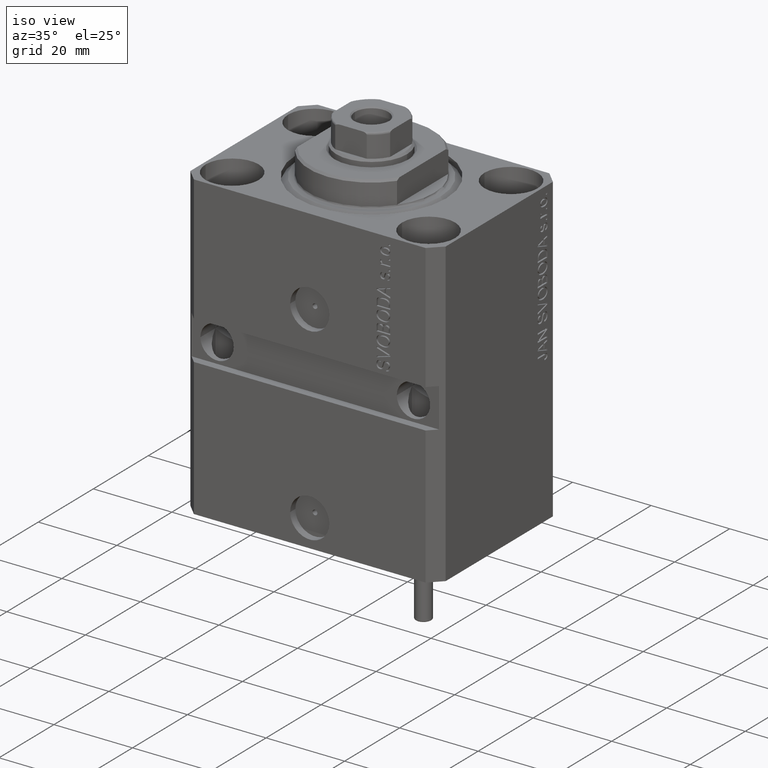
[diagram: clean part render]
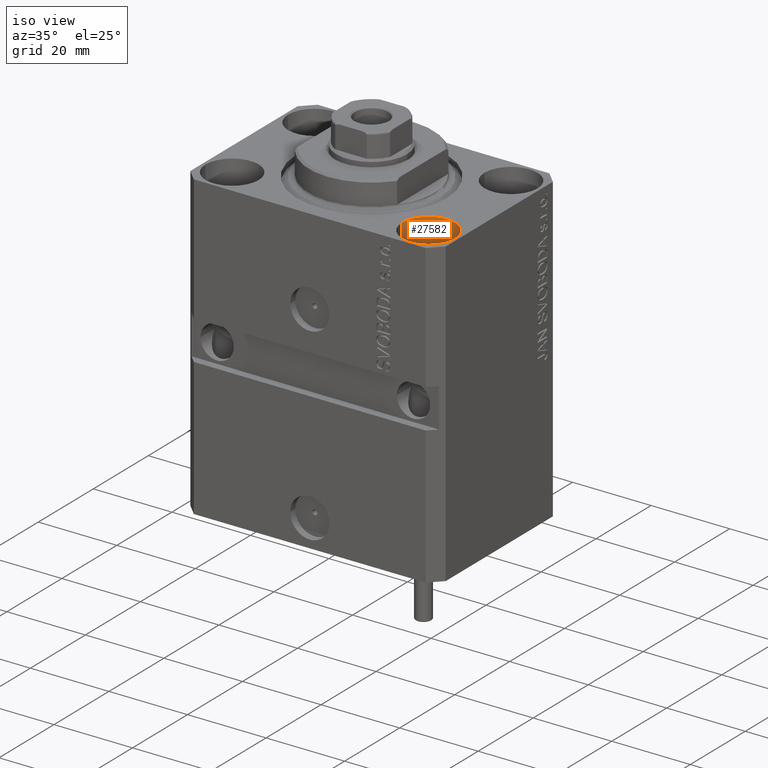
[diagram: same view with one face highlighted and labeled with its STEP entity id]
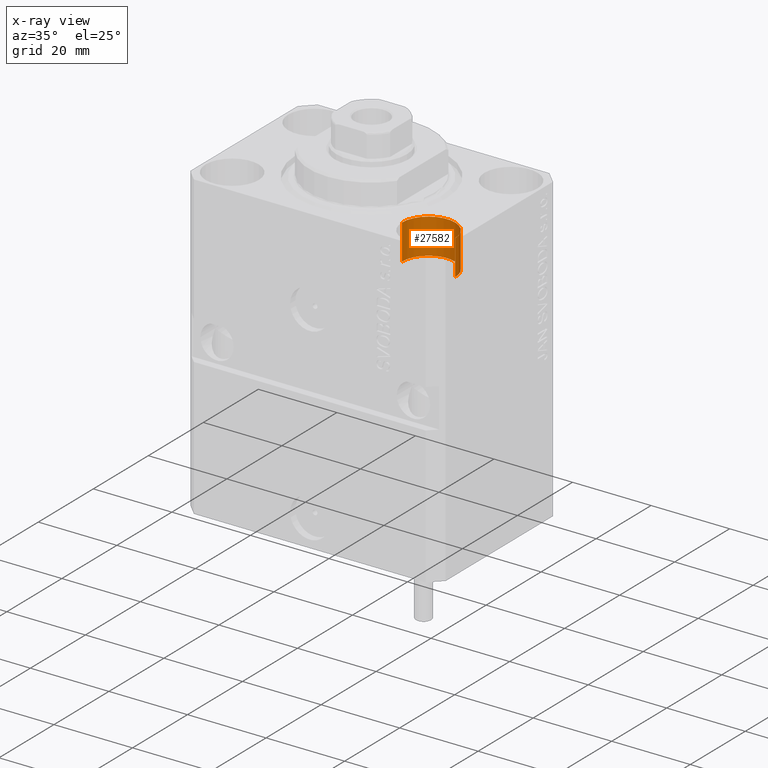
[diagram: x-ray of the same camera — body ghosted, the highlighted face saturated]
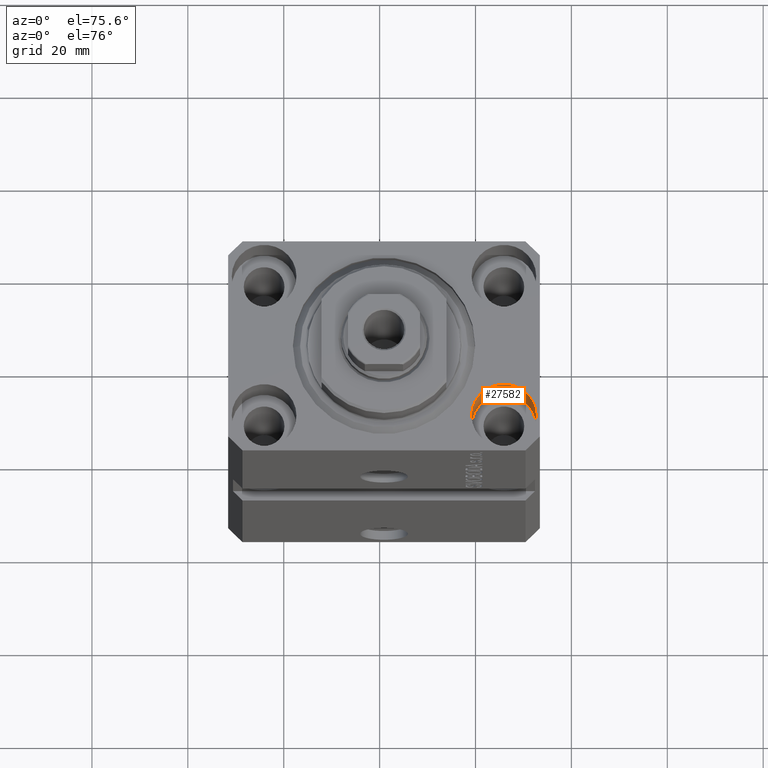
[diagram: same view with one face highlighted and labeled with its STEP entity id]
A machine part, iso view. The second image highlights one B-rep face of the part: STEP entity #27582.
The next image is the same camera in x-ray: the body ghosted, the highlighted face saturated — about 0% of this face is hidden behind the body in this view.
A second angle (auxiliary view) of the same face is appended — the face is thin or edge-on in the first view.
In plain terms, the highlighted cylindrical surface (edge-blend (fillet) strip) has radius 6.75 mm, axis along (0, 0, 1).
Its self-contained STEP definition (entity closure, byte-faithful):
#3739 = ORIENTED_EDGE ( 'NONE', *, *, #23119, .T. ) ;
#5137 = CARTESIAN_POINT ( 'NONE',  ( 25.00000000000000355, -15.00000000000000000, 0.000000000000000000 ) ) ;
#6008 = AXIS2_PLACEMENT_3D ( 'NONE', #5137, #34692, #45881 ) ;
#6012 = CARTESIAN_POINT ( 'NONE',  ( 18.25000000002253842, -15.00000000000000000, -9.000000000000000000 ) ) ;
#6070 = ORIENTED_EDGE ( 'NONE', *, *, #31295, .F. ) ;
#7476 = CYLINDRICAL_SURFACE ( 'NONE', #24908, 6.749999999977465137 ) ;
#9651 = DIRECTION ( 'NONE',  ( -0.000000000000000000, -0.000000000000000000, 1.000000000000000000 ) ) ;
#13250 = VERTEX_POINT ( 'NONE', #26316 ) ;
#13810 = VERTEX_POINT ( 'NONE', #30028 ) ;
#14310 = EDGE_CURVE ( 'NONE', #15833, #17668, #44765, .T. ) ;
#14453 = CARTESIAN_POINT ( 'NONE',  ( 25.00000000000000355, -15.00000000000000000, -9.000000000000000000 ) ) ;
#14566 = DIRECTION ( 'NONE',  ( -0.000000000000000000, -0.000000000000000000, 1.000000000000000000 ) ) ;
#15833 = VERTEX_POINT ( 'NONE', #37510 ) ;
#17108 = ORIENTED_EDGE ( 'NONE', *, *, #14310, .T. ) ;
#17668 = VERTEX_POINT ( 'NONE', #25344 ) ;
#17828 = ORIENTED_EDGE ( 'NONE', *, *, #44457, .F. ) ;
#18161 = DIRECTION ( 'NONE',  ( 1.000000000000000000, 0.000000000000000000, 0.000000000000000000 ) ) ;
#18217 = LINE ( 'NONE', #32984, #20139 ) ;
#18338 = DIRECTION ( 'NONE',  ( 1.000000000000000000, 0.000000000000000000, 0.000000000000000000 ) ) ;
#20139 = VECTOR ( 'NONE', #14566, 1000.000000000000000 ) ;
#23119 = EDGE_CURVE ( 'NONE', #13250, #15833, #18217, .T. ) ;
#23532 = CIRCLE ( 'NONE', #40539, 6.749999999977465137 ) ;
#24908 = AXIS2_PLACEMENT_3D ( 'NONE', #25420, #32690, #18161 ) ;
#25344 = CARTESIAN_POINT ( 'NONE',  ( 18.25000000002253842, -15.00000000000000000, 0.000000000000000000 ) ) ;
#25420 = CARTESIAN_POINT ( 'NONE',  ( 25.00000000000000355, -15.00000000000000000, -9.000000000000000000 ) ) ;
#26316 = CARTESIAN_POINT ( 'NONE',  ( 31.74999999997746869, -15.00000000000000000, -9.000000000000000000 ) ) ;
#27582 = ADVANCED_FACE ( 'NONE', ( #29294 ), #7476, .F. ) ;
#29294 = FACE_OUTER_BOUND ( 'NONE', #42774, .T. ) ;
#30028 = CARTESIAN_POINT ( 'NONE',  ( 18.25000000002253842, -15.00000000000000000, -9.000000000000000000 ) ) ;
#30328 = VECTOR ( 'NONE', #9651, 1000.000000000000000 ) ;
#31295 = EDGE_CURVE ( 'NONE', #13810, #17668, #46284, .T. ) ;
#32690 = DIRECTION ( 'NONE',  ( -0.000000000000000000, -0.000000000000000000, 1.000000000000000000 ) ) ;
#32984 = CARTESIAN_POINT ( 'NONE',  ( 31.74999999997746869, -15.00000000000000000, -9.000000000000000000 ) ) ;
#34692 = DIRECTION ( 'NONE',  ( 0.000000000000000000, 0.000000000000000000, 1.000000000000000000 ) ) ;
#36746 = DIRECTION ( 'NONE',  ( 0.000000000000000000, 0.000000000000000000, 1.000000000000000000 ) ) ;
#37510 = CARTESIAN_POINT ( 'NONE',  ( 31.74999999997746869, -15.00000000000000000, 0.000000000000000000 ) ) ;
#40539 = AXIS2_PLACEMENT_3D ( 'NONE', #14453, #36746, #18338 ) ;
#42774 = EDGE_LOOP ( 'NONE', ( #6070, #17828, #3739, #17108 ) ) ;
#44457 = EDGE_CURVE ( 'NONE', #13250, #13810, #23532, .T. ) ;
#44765 = CIRCLE ( 'NONE', #6008, 6.749999999977465137 ) ;
#45881 = DIRECTION ( 'NONE',  ( 1.000000000000000000, 0.000000000000000000, 0.000000000000000000 ) ) ;
#46284 = LINE ( 'NONE', #6012, #30328 ) ;